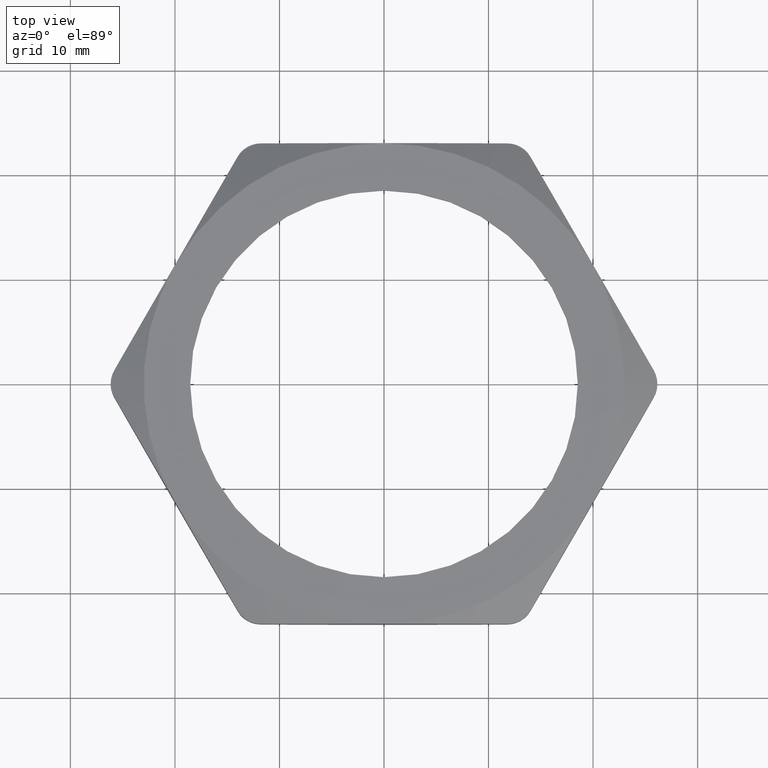
[diagram: clean part render]
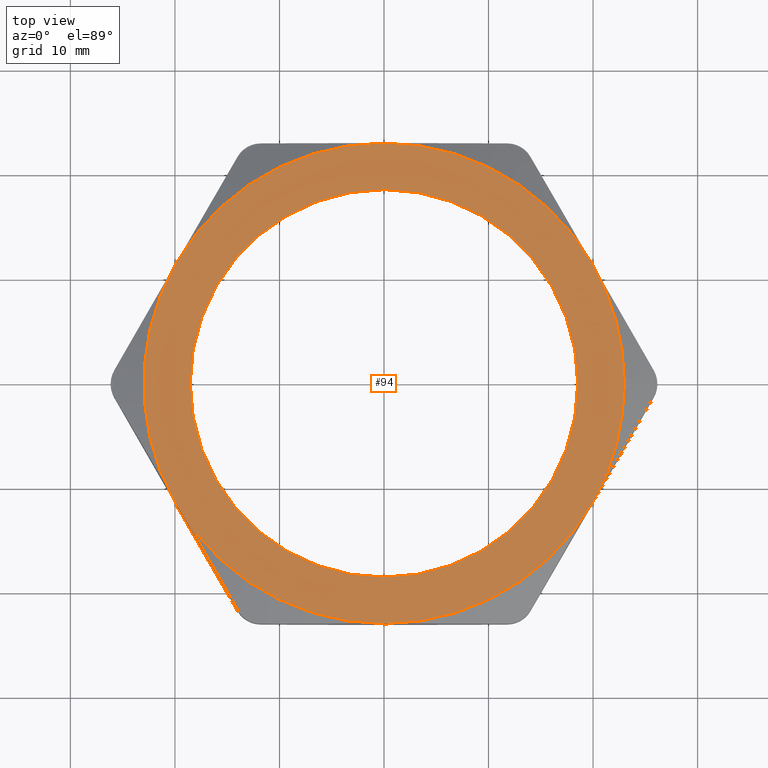
[diagram: same view with one face highlighted and labeled with its STEP entity id]
A machine part, top view. The second image highlights one B-rep face of the part: STEP entity #94.
In plain terms, the highlighted planar face has unit normal (0, 0, -1).
Its self-contained STEP definition (entity closure, byte-faithful):
#34 = EDGE_CURVE ( 'NONE', #2640, #164, #868, .T. ) ;
#35 = ORIENTED_EDGE ( 'NONE', *, *, #34, .T. ) ;
#38 = ORIENTED_EDGE ( 'NONE', *, *, #42, .T. ) ;
#42 = EDGE_CURVE ( 'NONE', #2669, #2640, #856, .T. ) ;
#43 = EDGE_CURVE ( 'NONE', #2711, #2669, #852, .T. ) ;
#46 = EDGE_LOOP ( 'NONE', ( #50, #38, #35, #90, #92, #74, #76 ) ) ;
#47 = EDGE_CURVE ( 'NONE', #522, #521, #847, .T. ) ;
#48 = ORIENTED_EDGE ( 'NONE', *, *, #508, .F. ) ;
#50 = ORIENTED_EDGE ( 'NONE', *, *, #43, .T. ) ;
#52 = ORIENTED_EDGE ( 'NONE', *, *, #47, .F. ) ;
#53 = VERTEX_POINT ( 'NONE', #902 ) ;
#74 = ORIENTED_EDGE ( 'NONE', *, *, #546, .T. ) ;
#75 = EDGE_CURVE ( 'NONE', #53, #128, #965, .T. ) ;
#76 = ORIENTED_EDGE ( 'NONE', *, *, #86, .T. ) ;
#86 = EDGE_CURVE ( 'NONE', #138, #2711, #948, .T. ) ;
#87 = EDGE_CURVE ( 'NONE', #164, #53, #991, .T. ) ;
#89 = EDGE_LOOP ( 'NONE', ( #48, #52 ) ) ;
#90 = ORIENTED_EDGE ( 'NONE', *, *, #87, .T. ) ;
#92 = ORIENTED_EDGE ( 'NONE', *, *, #75, .T. ) ;
#94 = ADVANCED_FACE ( 'NONE', ( #982, #981 ), #980, .F. ) ;
#128 = VERTEX_POINT ( 'NONE', #1065 ) ;
#138 = VERTEX_POINT ( 'NONE', #1100 ) ;
#164 = VERTEX_POINT ( 'NONE', #1163 ) ;
#508 = EDGE_CURVE ( 'NONE', #521, #522, #1811, .T. ) ;
#521 = VERTEX_POINT ( 'NONE', #1843 ) ;
#522 = VERTEX_POINT ( 'NONE', #1842 ) ;
#546 = EDGE_CURVE ( 'NONE', #128, #138, #1854, .T. ) ;
#846 = CARTESIAN_POINT ( 'NONE',  ( 0.0000000000000000000, 0.0000000000000000000, 0.2700000000000000200 ) ) ;
#847 = CIRCLE ( 'NONE', #905, 0.7299999999999999800 ) ;
#848 = DIRECTION ( 'NONE',  ( 1.000000000000000000, 0.0000000000000000000, 0.0000000000000000000 ) ) ;
#849 = DIRECTION ( 'NONE',  ( 0.0000000000000000000, 0.0000000000000000000, 1.000000000000000000 ) ) ;
#850 = CARTESIAN_POINT ( 'NONE',  ( 0.0000000000000000000, 0.0000000000000000000, 0.2700000000000000200 ) ) ;
#851 = AXIS2_PLACEMENT_3D ( 'NONE', #850, #849, #848 ) ;
#852 = CIRCLE ( 'NONE', #851, 0.9050000000000004700 ) ;
#853 = DIRECTION ( 'NONE',  ( 1.000000000000000000, 0.0000000000000000000, 0.0000000000000000000 ) ) ;
#854 = DIRECTION ( 'NONE',  ( 0.0000000000000000000, 0.0000000000000000000, 1.000000000000000000 ) ) ;
#855 = AXIS2_PLACEMENT_3D ( 'NONE', #861, #854, #853 ) ;
#856 = CIRCLE ( 'NONE', #855, 0.9050000000000004700 ) ;
#861 = CARTESIAN_POINT ( 'NONE',  ( 0.0000000000000000000, 0.0000000000000000000, 0.2700000000000000200 ) ) ;
#864 = DIRECTION ( 'NONE',  ( 1.000000000000000000, 0.0000000000000000000, 0.0000000000000000000 ) ) ;
#865 = DIRECTION ( 'NONE',  ( 0.0000000000000000000, 0.0000000000000000000, 1.000000000000000000 ) ) ;
#866 = CARTESIAN_POINT ( 'NONE',  ( 0.0000000000000000000, 0.0000000000000000000, 0.2700000000000000200 ) ) ;
#867 = AXIS2_PLACEMENT_3D ( 'NONE', #866, #865, #864 ) ;
#868 = CIRCLE ( 'NONE', #867, 0.9050000000000004700 ) ;
#902 = CARTESIAN_POINT ( 'NONE',  ( 0.7837529904249169700, -0.4525000000000000100, 0.2700000000000000200 ) ) ;
#903 = DIRECTION ( 'NONE',  ( 1.000000000000000000, 0.0000000000000000000, 0.0000000000000000000 ) ) ;
#904 = DIRECTION ( 'NONE',  ( 0.0000000000000000000, 0.0000000000000000000, 1.000000000000000000 ) ) ;
#905 = AXIS2_PLACEMENT_3D ( 'NONE', #846, #904, #903 ) ;
#947 = AXIS2_PLACEMENT_3D ( 'NONE', #950, #993, #992 ) ;
#948 = CIRCLE ( 'NONE', #947, 0.9050000000000004700 ) ;
#949 = CARTESIAN_POINT ( 'NONE',  ( 0.0000000000000000000, 0.0000000000000000000, 0.2700000000000000200 ) ) ;
#950 = CARTESIAN_POINT ( 'NONE',  ( 0.0000000000000000000, 0.0000000000000000000, 0.2700000000000000200 ) ) ;
#958 = DIRECTION ( 'NONE',  ( 1.000000000000000000, 0.0000000000000000000, 0.0000000000000000000 ) ) ;
#959 = DIRECTION ( 'NONE',  ( 0.0000000000000000000, 0.0000000000000000000, 1.000000000000000000 ) ) ;
#960 = CARTESIAN_POINT ( 'NONE',  ( 0.0000000000000000000, 0.0000000000000000000, 0.2700000000000000200 ) ) ;
#961 = AXIS2_PLACEMENT_3D ( 'NONE', #960, #959, #958 ) ;
#965 = CIRCLE ( 'NONE', #961, 0.9050000000000004700 ) ;
#976 = DIRECTION ( 'NONE',  ( -1.000000000000000000, 0.0000000000000000000, 0.0000000000000000000 ) ) ;
#977 = DIRECTION ( 'NONE',  ( 0.0000000000000000000, 0.0000000000000000000, -1.000000000000000000 ) ) ;
#978 = CARTESIAN_POINT ( 'NONE',  ( 8.195543980992789700E-016, 1.810000000000000900, 0.2700000000000000200 ) ) ;
#979 = AXIS2_PLACEMENT_3D ( 'NONE', #978, #977, #976 ) ;
#980 = PLANE ( 'NONE',  #979 ) ;
#981 = FACE_OUTER_BOUND ( 'NONE', #46, .T. ) ;
#982 = FACE_BOUND ( 'NONE', #89, .T. ) ;
#988 = DIRECTION ( 'NONE',  ( 1.000000000000000000, 0.0000000000000000000, 0.0000000000000000000 ) ) ;
#989 = DIRECTION ( 'NONE',  ( 0.0000000000000000000, 0.0000000000000000000, 1.000000000000000000 ) ) ;
#990 = AXIS2_PLACEMENT_3D ( 'NONE', #949, #989, #988 ) ;
#991 = CIRCLE ( 'NONE', #990, 0.9050000000000004700 ) ;
#992 = DIRECTION ( 'NONE',  ( 1.000000000000000000, 0.0000000000000000000, 0.0000000000000000000 ) ) ;
#993 = DIRECTION ( 'NONE',  ( 0.0000000000000000000, 0.0000000000000000000, 1.000000000000000000 ) ) ;
#1065 = CARTESIAN_POINT ( 'NONE',  ( 0.9050000000000004700, 0.0000000000000000000, 0.2700000000000000200 ) ) ;
#1100 = CARTESIAN_POINT ( 'NONE',  ( 0.7837529904249175300, 0.4524999999999999600, 0.2700000000000000200 ) ) ;
#1163 = CARTESIAN_POINT ( 'NONE',  ( 2.365849761790801000E-016, -0.9049999999999999200, 0.2700000000000000200 ) ) ;
#1808 = DIRECTION ( 'NONE',  ( 1.000000000000000000, 0.0000000000000000000, 0.0000000000000000000 ) ) ;
#1809 = DIRECTION ( 'NONE',  ( 0.0000000000000000000, 0.0000000000000000000, 1.000000000000000000 ) ) ;
#1810 = AXIS2_PLACEMENT_3D ( 'NONE', #1817, #1809, #1808 ) ;
#1811 = CIRCLE ( 'NONE', #1810, 0.7299999999999999800 ) ;
#1817 = CARTESIAN_POINT ( 'NONE',  ( 0.0000000000000000000, 0.0000000000000000000, 0.2700000000000000200 ) ) ;
#1842 = CARTESIAN_POINT ( 'NONE',  ( 0.7299999999999999800, 9.062386313690414600E-017, 0.2700000000000000200 ) ) ;
#1843 = CARTESIAN_POINT ( 'NONE',  ( -0.7299999999999999800, 0.0000000000000000000, 0.2700000000000000200 ) ) ;
#1854 = CIRCLE ( 'NONE', #1915, 0.9050000000000004700 ) ;
#1912 = DIRECTION ( 'NONE',  ( 1.000000000000000000, 0.0000000000000000000, 0.0000000000000000000 ) ) ;
#1913 = DIRECTION ( 'NONE',  ( 0.0000000000000000000, 0.0000000000000000000, 1.000000000000000000 ) ) ;
#1914 = CARTESIAN_POINT ( 'NONE',  ( 0.0000000000000000000, 0.0000000000000000000, 0.2700000000000000200 ) ) ;
#1915 = AXIS2_PLACEMENT_3D ( 'NONE', #1914, #1913, #1912 ) ;
#2353 = CARTESIAN_POINT ( 'NONE',  ( -0.7837529904249172000, -0.4524999999999997400, 0.2700000000000000200 ) ) ;
#2385 = CARTESIAN_POINT ( 'NONE',  ( -0.7837529904249169700, 0.4525000000000000700, 0.2700000000000000200 ) ) ;
#2518 = CARTESIAN_POINT ( 'NONE',  ( -1.182924880895400800E-016, 0.9050000000000001400, 0.2700000000000000200 ) ) ;
#2640 = VERTEX_POINT ( 'NONE', #2353 ) ;
#2669 = VERTEX_POINT ( 'NONE', #2385 ) ;
#2711 = VERTEX_POINT ( 'NONE', #2518 ) ;